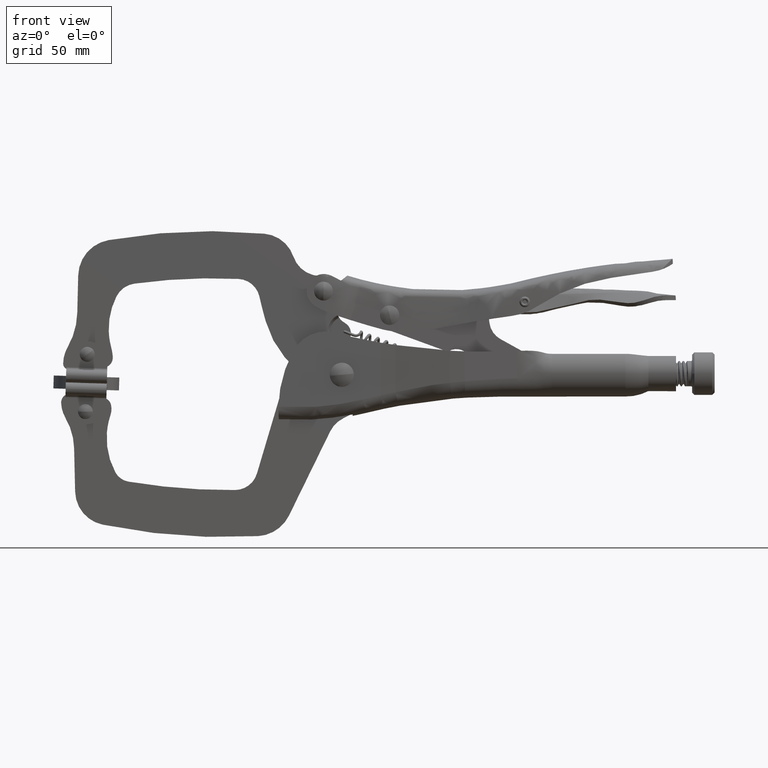
[diagram: clean part render]
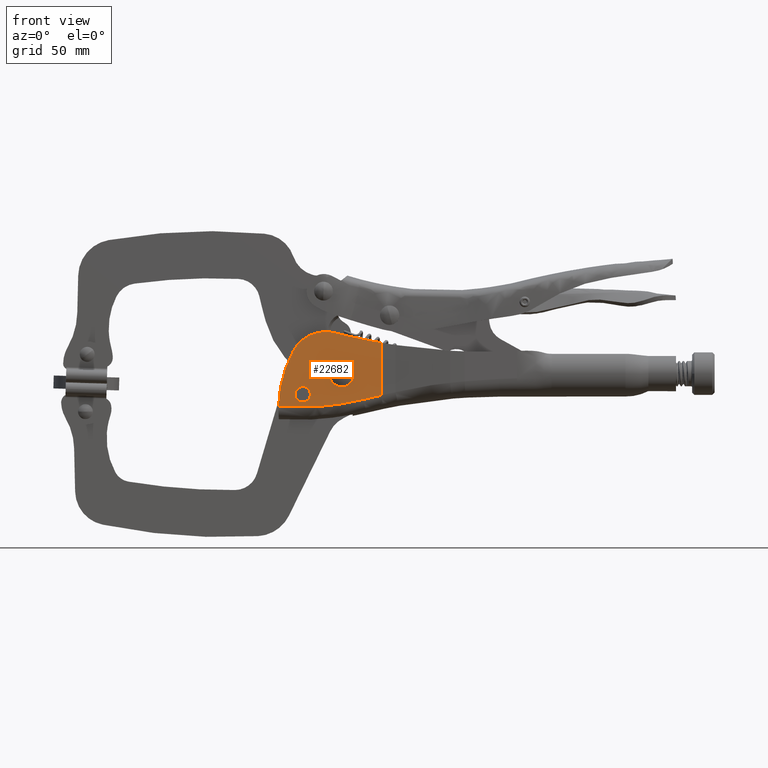
[diagram: same view with one face highlighted and labeled with its STEP entity id]
A machine part, front view. The second image highlights one B-rep face of the part: STEP entity #22682.
In plain terms, the highlighted planar face has unit normal (0, -1, 0).
Its self-contained STEP definition (entity closure, byte-faithful):
#716 = FACE_BOUND ( 'NONE', #43688, .T. ) ;
#1946 = CARTESIAN_POINT ( 'NONE',  ( -58.22377548243903800, -4.198204512735061100, 19.28018557249971100 ) ) ;
#2453 = EDGE_CURVE ( 'NONE', #44533, #30884, #12898, .T. ) ;
#2580 = DIRECTION ( 'NONE',  ( -0.0000000000000000000, 1.000000000000000000, -0.0000000000000000000 ) ) ;
#2790 = CARTESIAN_POINT ( 'NONE',  ( -45.87564973309088100, -4.198204512735061100, -9.665386559516793600 ) ) ;
#3040 = CARTESIAN_POINT ( 'NONE',  ( -72.09901867909886200, -4.198204512735061100, -10.61586668635286300 ) ) ;
#5036 = AXIS2_PLACEMENT_3D ( 'NONE', #41154, #46111, #16596 ) ;
#5335 = CARTESIAN_POINT ( 'NONE',  ( -72.20120547434520100, -4.198204512735061100, -4.291892734051755200 ) ) ;
#6290 = ORIENTED_EDGE ( 'NONE', *, *, #37836, .T. ) ;
#7041 = CARTESIAN_POINT ( 'NONE',  ( -38.11050403654430600, -4.198204512735064700, -7.875589902148007600 ) ) ;
#7772 = CARTESIAN_POINT ( 'NONE',  ( -38.11050403654430600, -4.198204512735064700, -7.875589902148007600 ) ) ;
#7782 = VERTEX_POINT ( 'NONE', #5335 ) ;
#7887 = ORIENTED_EDGE ( 'NONE', *, *, #24577, .T. ) ;
#9832 = VERTEX_POINT ( 'NONE', #36435 ) ;
#11240 = DIRECTION ( 'NONE',  ( -0.0000000000000000000, 1.000000000000000000, -0.0000000000000000000 ) ) ;
#12592 = ORIENTED_EDGE ( 'NONE', *, *, #21249, .T. ) ;
#12671 = DIRECTION ( 'NONE',  ( -0.0000000000000000000, 1.000000000000000000, -0.0000000000000000000 ) ) ;
#12898 = CIRCLE ( 'NONE', #48507, 16.00000000000000000 ) ;
#14138 = DIRECTION ( 'NONE',  ( 0.0000000000000000000, 1.000000000000000000, 0.0000000000000000000 ) ) ;
#14172 = ORIENTED_EDGE ( 'NONE', *, *, #50996, .F. ) ;
#14478 = CARTESIAN_POINT ( 'NONE',  ( -62.18125906894898900, -4.198204512735061100, 3.777336683908171500 ) ) ;
#16596 = DIRECTION ( 'NONE',  ( 0.0000000000000000000, -0.0000000000000000000, -1.000000000000000000 ) ) ;
#16875 = EDGE_CURVE ( 'NONE', #7782, #33783, #30232, .T. ) ;
#20402 = CARTESIAN_POINT ( 'NONE',  ( -72.15011207672203900, -4.198204512735061100, -7.453879710202310000 ) ) ;
#21249 = EDGE_CURVE ( 'NONE', #55558, #9832, #37205, .T. ) ;
#22037 = DIRECTION ( 'NONE',  ( -0.0000000000000000000, -1.000000000000000000, -0.0000000000000000000 ) ) ;
#22682 = ADVANCED_FACE ( 'NONE', ( #716, #38694, #25530 ), #60696, .T. ) ;
#24107 = CARTESIAN_POINT ( 'NONE',  ( -76.49496936514968600, -4.198204512735061100, -13.29643405472387500 ) ) ;
#24180 = DIRECTION ( 'NONE',  ( 0.0000000000000000000, 1.000000000000000000, 0.0000000000000000000 ) ) ;
#24309 = VERTEX_POINT ( 'NONE', #33981 ) ;
#24319 = CARTESIAN_POINT ( 'NONE',  ( -57.96549299324897200, -4.198204512735060200, -12.16296364510704500 ) ) ;
#24577 = EDGE_CURVE ( 'NONE', #39783, #55558, #47017, .T. ) ;
#25062 = CARTESIAN_POINT ( 'NONE',  ( -82.66273582224064900, -4.198204512735058500, -12.87197240008159600 ) ) ;
#25382 = DIRECTION ( 'NONE',  ( 0.0000000000000000000, 0.0000000000000000000, -1.000000000000000000 ) ) ;
#25530 = FACE_OUTER_BOUND ( 'NONE', #54214, .T. ) ;
#25910 = VERTEX_POINT ( 'NONE', #30145 ) ;
#27046 = DIRECTION ( 'NONE',  ( 0.0000000000000000000, 1.000000000000000000, 0.0000000000000000000 ) ) ;
#27678 = CIRCLE ( 'NONE', #31994, 265.0000000000001100 ) ;
#29291 = CARTESIAN_POINT ( 'NONE',  ( -45.87564973309088100, -4.198204512735061100, -9.665386559516793600 ) ) ;
#29946 = AXIS2_PLACEMENT_3D ( 'NONE', #42257, #12671, #47201 ) ;
#30026 = AXIS2_PLACEMENT_3D ( 'NONE', #56539, #27046, #61452 ) ;
#30145 = CARTESIAN_POINT ( 'NONE',  ( -60.38064643556683100, -4.198204512735060200, 0.5944452728394850100 ) ) ;
#30232 = CIRCLE ( 'NONE', #43552, 3.162399749023894600 ) ;
#30491 = AXIS2_PLACEMENT_3D ( 'NONE', #32228, #2580, #37206 ) ;
#30884 = VERTEX_POINT ( 'NONE', #53969 ) ;
#31994 = AXIS2_PLACEMENT_3D ( 'NONE', #53696, #24180, #58640 ) ;
#32228 = CARTESIAN_POINT ( 'NONE',  ( -55.15011207672202400, -4.198204512735060200, 1.046120289797688200 ) ) ;
#32428 = CARTESIAN_POINT ( 'NONE',  ( -43.29692604570114900, -4.198204512735061100, -9.026884887753627900 ) ) ;
#33296 = CIRCLE ( 'NONE', #30026, 16.00000000000000000 ) ;
#33783 = VERTEX_POINT ( 'NONE', #3040 ) ;
#33981 = CARTESIAN_POINT ( 'NONE',  ( -49.91957771787722500, -4.198204512735060200, 1.497795306755892000 ) ) ;
#34482 = EDGE_CURVE ( 'NONE', #56061, #39783, #56177, .T. ) ;
#36357 = CIRCLE ( 'NONE', #29946, 5.250000000000020400 ) ;
#36435 = CARTESIAN_POINT ( 'NONE',  ( -38.11050403654428500, -4.198204512735071800, 14.96972656739971400 ) ) ;
#36753 = VERTEX_POINT ( 'NONE', #1946 ) ;
#37205 = LINE ( 'NONE', #48899, #48743 ) ;
#37206 = DIRECTION ( 'NONE',  ( 0.0000000000000000000, 0.0000000000000000000, -1.000000000000000000 ) ) ;
#37409 = CARTESIAN_POINT ( 'NONE',  ( -40.70854414685231900, -4.198204512735061100, -8.430286001963846600 ) ) ;
#37836 = EDGE_CURVE ( 'NONE', #44533, #56061, #45036, .T. ) ;
#38061 = ORIENTED_EDGE ( 'NONE', *, *, #54722, .T. ) ;
#38694 = FACE_BOUND ( 'NONE', #53639, .T. ) ;
#38856 = ORIENTED_EDGE ( 'NONE', *, *, #58085, .T. ) ;
#39591 = ORIENTED_EDGE ( 'NONE', *, *, #41118, .T. ) ;
#39783 = VERTEX_POINT ( 'NONE', #54934 ) ;
#39849 = DIRECTION ( 'NONE',  ( -0.0000000000000000000, 0.0000000000000000000, 1.000000000000000000 ) ) ;
#40828 = CARTESIAN_POINT ( 'NONE',  ( -72.15011207672203900, -4.198204512735061100, -7.453879710202310000 ) ) ;
#41118 = EDGE_CURVE ( 'NONE', #33783, #7782, #56478, .T. ) ;
#41154 = CARTESIAN_POINT ( 'NONE',  ( -84.77687191233039200, -4.198204512735061100, 31.04612028979771700 ) ) ;
#41679 = CIRCLE ( 'NONE', #30491, 5.250000000000020400 ) ;
#42257 = CARTESIAN_POINT ( 'NONE',  ( -55.15011207672202400, -4.198204512735060200, 1.046120289797688200 ) ) ;
#42339 = DIRECTION ( 'NONE',  ( 0.0000000000000000000, 0.0000000000000000000, 1.000000000000000000 ) ) ;
#42710 = AXIS2_PLACEMENT_3D ( 'NONE', #40828, #11240, #45761 ) ;
#43552 = AXIS2_PLACEMENT_3D ( 'NONE', #20402, #54879, #25382 ) ;
#43688 = EDGE_LOOP ( 'NONE', ( #38061, #51118 ) ) ;
#44214 = ORIENTED_EDGE ( 'NONE', *, *, #16875, .T. ) ;
#44416 = EDGE_CURVE ( 'NONE', #24309, #25910, #36357, .T. ) ;
#44533 = VERTEX_POINT ( 'NONE', #57076 ) ;
#45036 = CIRCLE ( 'NONE', #61977, 54.00000000000024900 ) ;
#45761 = DIRECTION ( 'NONE',  ( 0.0000000000000000000, 0.0000000000000000000, -1.000000000000000000 ) ) ;
#46111 = DIRECTION ( 'NONE',  ( 0.0000000000000000000, -1.000000000000000000, 0.0000000000000000000 ) ) ;
#47017 = B_SPLINE_CURVE_WITH_KNOTS ( 'NONE', 3,
 ( #2790, #32428, #37409, #7772 ),
 .UNSPECIFIED., .F., .F.,
 ( 4, 4 ),
 ( 0.0000000000000000000, 1.000000000000000000 ),
 .UNSPECIFIED. ) ;
#47201 = DIRECTION ( 'NONE',  ( 0.0000000000000000000, 0.0000000000000000000, -1.000000000000000000 ) ) ;
#48507 = AXIS2_PLACEMENT_3D ( 'NONE', #14478, #14138, #42339 ) ;
#48743 = VECTOR ( 'NONE', #39849, 1000.000000000000000 ) ;
#48896 = CARTESIAN_POINT ( 'NONE',  ( -82.66273582224064900, -4.198204512735058500, -12.87197240008159600 ) ) ;
#48899 = CARTESIAN_POINT ( 'NONE',  ( -38.11050403654431300, -4.198204512735061100, 31.04612028979771700 ) ) ;
#50996 = EDGE_CURVE ( 'NONE', #30884, #36753, #33296, .T. ) ;
#51118 = ORIENTED_EDGE ( 'NONE', *, *, #44416, .T. ) ;
#51569 = CARTESIAN_POINT ( 'NONE',  ( -28.67795358086907200, -4.198204512735061100, -14.15387971020230800 ) ) ;
#53639 = EDGE_LOOP ( 'NONE', ( #39591, #44214 ) ) ;
#53696 = CARTESIAN_POINT ( 'NONE',  ( 7.322046419130972000, -4.198204512735061100, 276.0461202897976700 ) ) ;
#53835 = CARTESIAN_POINT ( 'NONE',  ( -70.32385416322817700, -4.198204512735061100, -13.23968900998056600 ) ) ;
#53969 = CARTESIAN_POINT ( 'NONE',  ( -62.18125906894898900, -4.198204512735061100, 19.77733668390817100 ) ) ;
#54214 = EDGE_LOOP ( 'NONE', ( #57306, #6290, #58822, #7887, #12592, #38856, #14172 ) ) ;
#54722 = EDGE_CURVE ( 'NONE', #25910, #24309, #41679, .T. ) ;
#54879 = DIRECTION ( 'NONE',  ( -0.0000000000000000000, 1.000000000000000000, -0.0000000000000000000 ) ) ;
#54934 = CARTESIAN_POINT ( 'NONE',  ( -45.87564973309088100, -4.198204512735061100, -9.665386559516793600 ) ) ;
#55558 = VERTEX_POINT ( 'NONE', #7041 ) ;
#56061 = VERTEX_POINT ( 'NONE', #25062 ) ;
#56177 = B_SPLINE_CURVE_WITH_KNOTS ( 'NONE', 3,
 ( #48896, #24107, #53835, #24319, #58768, #29291 ),
 .UNSPECIFIED., .F., .F.,
 ( 4, 2, 4 ),
 ( 0.0000000000000000000, 0.5000000000000000000, 1.000000000000000000 ),
 .UNSPECIFIED. ) ;
#56478 = CIRCLE ( 'NONE', #42710, 3.162399749023894600 ) ;
#56511 = DIRECTION ( 'NONE',  ( 0.0000000000000000000, 0.0000000000000000000, 1.000000000000000000 ) ) ;
#56539 = CARTESIAN_POINT ( 'NONE',  ( -62.18125906894898900, -4.198204512735061100, 3.777336683908171500 ) ) ;
#57076 = CARTESIAN_POINT ( 'NONE',  ( -76.28791401129828400, -4.198204512735061100, 11.32732253405986900 ) ) ;
#57306 = ORIENTED_EDGE ( 'NONE', *, *, #2453, .F. ) ;
#58085 = EDGE_CURVE ( 'NONE', #9832, #36753, #27678, .T. ) ;
#58640 = DIRECTION ( 'NONE',  ( 0.0000000000000000000, 0.0000000000000000000, 1.000000000000000000 ) ) ;
#58768 = CARTESIAN_POINT ( 'NONE',  ( -51.87581837819971800, -4.198204512735061100, -11.15098372243156000 ) ) ;
#58822 = ORIENTED_EDGE ( 'NONE', *, *, #34482, .T. ) ;
#60696 = PLANE ( 'NONE',  #5036 ) ;
#61452 = DIRECTION ( 'NONE',  ( 0.0000000000000000000, 0.0000000000000000000, 1.000000000000000000 ) ) ;
#61977 = AXIS2_PLACEMENT_3D ( 'NONE', #51569, #22037, #56511 ) ;